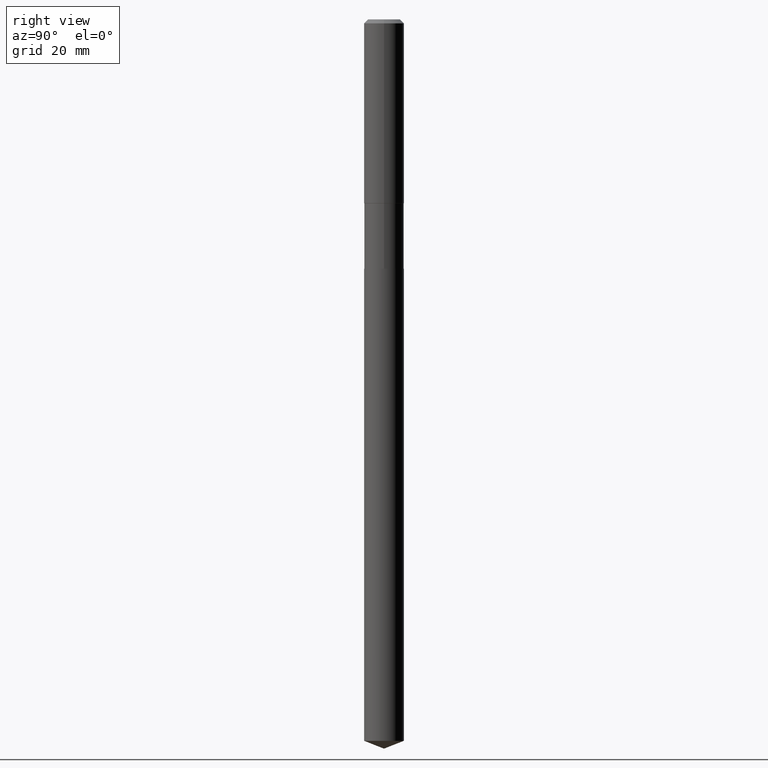
[diagram: clean part render]
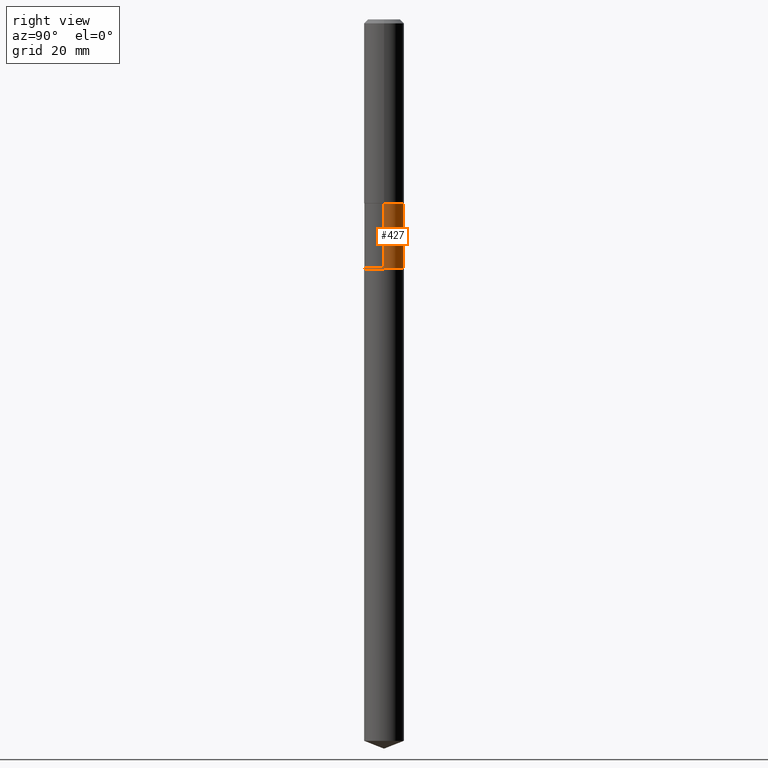
[diagram: same view with one face highlighted and labeled with its STEP entity id]
A machine part, right view. The second image highlights one B-rep face of the part: STEP entity #427.
In plain terms, the highlighted cylindrical surface (edge-blend (fillet) strip) has radius 3.9687 mm, axis along (-0, 0, 1).
Its self-contained STEP definition (entity closure, byte-faithful):
#6 = AXIS2_PLACEMENT_3D ( 'NONE', #36, #148, #329 ) ;
#17 = AXIS2_PLACEMENT_3D ( 'NONE', #136, #142, #112 ) ;
#28 = FACE_OUTER_BOUND ( 'NONE', #286, .T. ) ;
#36 = CARTESIAN_POINT ( 'NONE',  ( 0.000000000000000000, 0.000000000000000000, 0.000000000000000000 ) ) ;
#40 = CARTESIAN_POINT ( 'NONE',  ( -0.1562499999999999445, -4.848688176378441188E-15, -1.449100000000000055 ) ) ;
#48 = ORIENTED_EDGE ( 'NONE', *, *, #187, .T. ) ;
#82 = AXIS2_PLACEMENT_3D ( 'NONE', #194, #226, #489 ) ;
#88 = ORIENTED_EDGE ( 'NONE', *, *, #132, .T. ) ;
#95 = VERTEX_POINT ( 'NONE', #115 ) ;
#112 = DIRECTION ( 'NONE',  ( 1.000000000000000000, -6.982962677686265133E-15, 0.000000000000000000 ) ) ;
#115 = CARTESIAN_POINT ( 'NONE',  ( -0.1562500000000000000, -4.848688176378441188E-15, -1.964300000000000379 ) ) ;
#132 = EDGE_CURVE ( 'NONE', #95, #239, #264, .T. ) ;
#136 = CARTESIAN_POINT ( 'NONE',  ( 3.543728847042881471E-29, -5.059505608117602803E-15, -1.449100000000000055 ) ) ;
#142 = DIRECTION ( 'NONE',  ( -2.445468806185136597E-29, 3.491481338843145583E-15, 1.000000000000000000 ) ) ;
#148 = DIRECTION ( 'NONE',  ( -2.445468806185136597E-29, 3.491481338843145583E-15, 1.000000000000000000 ) ) ;
#159 = EDGE_CURVE ( 'NONE', #167, #238, #369, .T. ) ;
#167 = VERTEX_POINT ( 'NONE', #195 ) ;
#187 = EDGE_CURVE ( 'NONE', #167, #95, #387, .T. ) ;
#194 = CARTESIAN_POINT ( 'NONE',  ( 4.803634375989465217E-29, -6.858316793889591866E-15, -1.964300000000000379 ) ) ;
#195 = CARTESIAN_POINT ( 'NONE',  ( 0.1562500000000000000, -7.949404712278071040E-15, -1.964300000000000379 ) ) ;
#226 = DIRECTION ( 'NONE',  ( -2.445468806185136597E-29, 3.491481338843145583E-15, 1.000000000000000000 ) ) ;
#227 = CARTESIAN_POINT ( 'NONE',  ( 0.1562499999999999722, -1.091087918388478976E-15, 7.619026212181148976E-30 ) ) ;
#238 = VERTEX_POINT ( 'NONE', #376 ) ;
#239 = VERTEX_POINT ( 'NONE', #40 ) ;
#251 = VECTOR ( 'NONE', #413, 39.37007874015748143 ) ;
#255 = ORIENTED_EDGE ( 'NONE', *, *, #429, .F. ) ;
#264 = LINE ( 'NONE', #458, #487 ) ;
#286 = EDGE_LOOP ( 'NONE', ( #48, #88, #255, #435 ) ) ;
#299 = DIRECTION ( 'NONE',  ( -2.445468806185136877E-29, 3.491481338843145188E-15, 1.000000000000000000 ) ) ;
#329 = DIRECTION ( 'NONE',  ( 1.000000000000000000, -6.982962677686266711E-15, 4.876176775795936353E-29 ) ) ;
#369 = LINE ( 'NONE', #227, #251 ) ;
#370 = CYLINDRICAL_SURFACE ( 'NONE', #6, 0.1562499999999999722 ) ;
#376 = CARTESIAN_POINT ( 'NONE',  ( 0.1562499999999999445, -6.150593526506081976E-15, -1.449100000000000055 ) ) ;
#387 = CIRCLE ( 'NONE', #82, 0.1562500000000000000 ) ;
#413 = DIRECTION ( 'NONE',  ( -2.445468806185136877E-29, 3.491481338843145188E-15, 1.000000000000000000 ) ) ;
#427 = ADVANCED_FACE ( 'NONE', ( #28 ), #370, .T. ) ;
#429 = EDGE_CURVE ( 'NONE', #238, #239, #451, .T. ) ;
#435 = ORIENTED_EDGE ( 'NONE', *, *, #159, .F. ) ;
#451 = CIRCLE ( 'NONE', #17, 0.1562499999999999445 ) ;
#458 = CARTESIAN_POINT ( 'NONE',  ( -0.1562499999999999722, 1.110223024625156343E-15, -7.685836078523288357E-30 ) ) ;
#487 = VECTOR ( 'NONE', #299, 39.37007874015748143 ) ;
#489 = DIRECTION ( 'NONE',  ( 1.000000000000000000, -6.982962677686269077E-15, 0.000000000000000000 ) ) ;